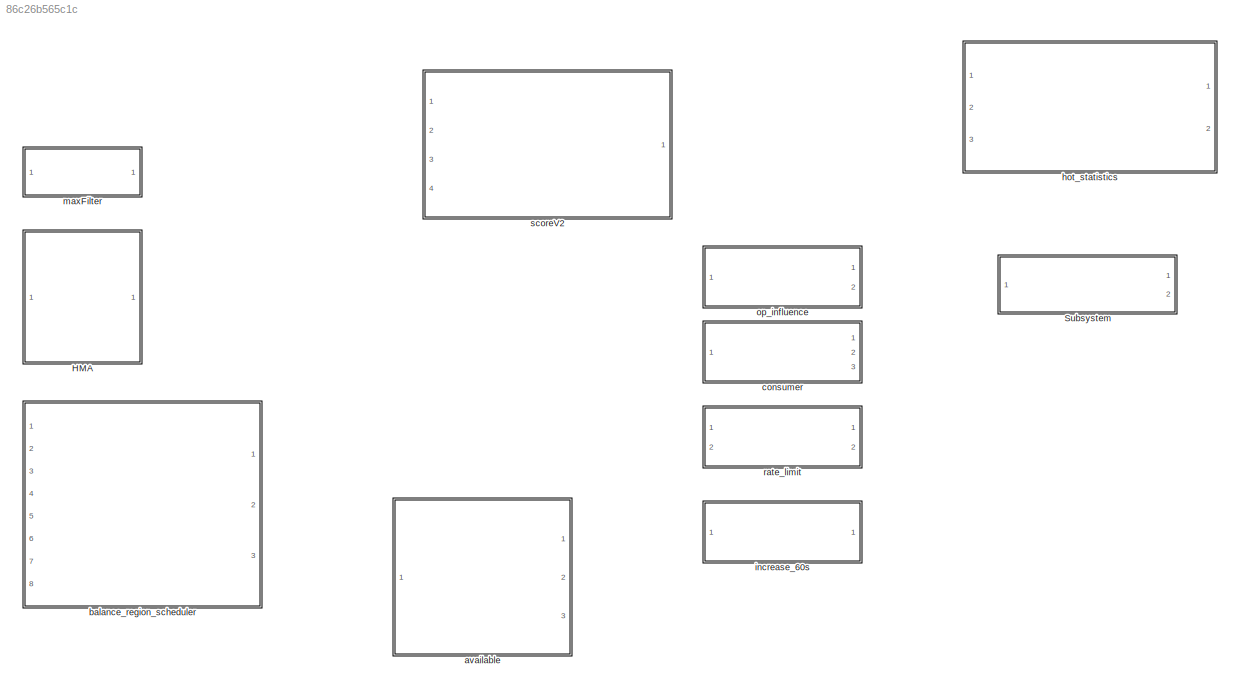
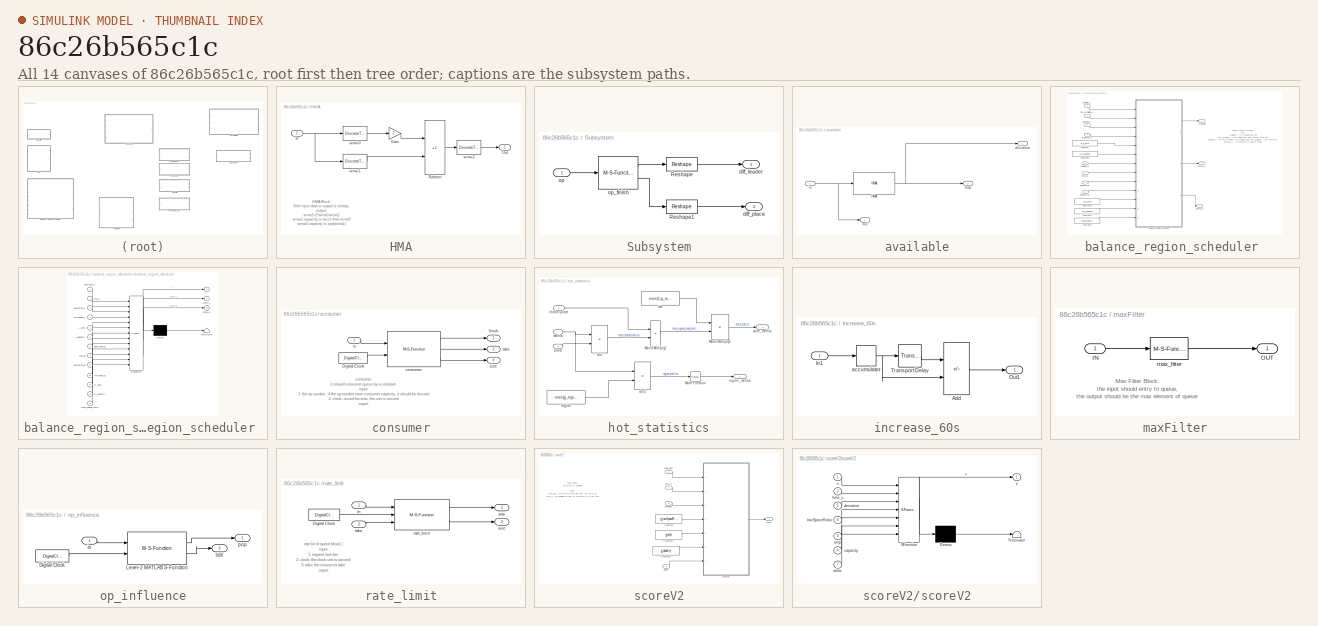
[diagram: thumbnail index - all 14 canvases of the model, root first then tree order]
MODEL slx_86c26b565c1c
KIND library
CONFIG AbsTol = auto
CONFIG EnableMultiTasking = off
CONFIG FixedStep = auto
CONFIG MaxStep = auto
CONFIG MinStep = auto
CONFIG RelTol = 1e-3
CONFIG SampleTimeConstraint = Unconstrained
CONFIG SolverName = VariableStepAuto
CONFIG StartTime = 0.0
CONFIG StopTime = 10.0
BLOCK [SubSystem] HMA
  Ports = [1, 1]
  RequestExecContextInheritance = off
BLOCK [Gain] HMA/Gain
  Gain = 2
BLOCK [Inport] HMA/In
BLOCK [Outport] HMA/Out
BLOCK [Sum] HMA/Subtract
  IconShape = rectangular
  Inputs = +-
  Ports = [2, 1]
BLOCK [DiscreteTransferFcn] HMA/wma-0
  Denominator = g_dens_0
  InitialStates = g_initial
  InputPortMap = u0
  Numerator = g_nums_0
  Ports = [1, 1]
  SampleTime = g_Ts
BLOCK [DiscreteTransferFcn] HMA/wma-1
  Denominator = g_dens_1
  InitialStates = g_initial
  InputPortMap = u0
  Numerator = g_nums_1
  Ports = [1, 1]
  SampleTime = g_Ts
BLOCK [DiscreteTransferFcn] HMA/wma-2
  Denominator = g_dens_2
  InitialStates = g_initial
  InputPortMap = u0
  Numerator = g_nums_2
  Ports = [1, 1]
  SampleTime = g_Ts
BLOCK [SubSystem] Subsystem
  Ports = [1, 2]
  RequestExecContextInheritance = off
BLOCK [Reshape] Subsystem/Reshape
  OutputDimensionality = Customize
  OutputDimensions = [g_region_count,g_store_count]
  Ports = [1, 1]
BLOCK [Reshape] Subsystem/Reshape1
  OutputDimensionality = Customize
  OutputDimensions = [g_region_count,g_store_count]
  Ports = [1, 1]
BLOCK [Outport] Subsystem/diff_leader
BLOCK [Outport] Subsystem/diff_place
  Port = 2
BLOCK [Inport] Subsystem/op
BLOCK [M-S-Function] Subsystem/op_finish
  FunctionName = op_finish
  Parameters = [g_region_count,g_store_count,g_Ts]
  Ports = [1, 2]
BLOCK [SubSystem] available
  Ports = [1, 3]
  RequestExecContextInheritance = off
BLOCK [Reference] available/HMA  REF=$bdroot/HMA
  Ports = [1, 1]
  SourceBlock = $bdroot/HMA
BLOCK [Outport] available/deviation
  Port = 3
BLOCK [Outport] available/hma
  Port = 2
BLOCK [Inport] available/in
BLOCK [Outport] available/out
BLOCK [SubSystem] balance_region_scheduler 
  Ports = [8, 3]
  RequestExecContextInheritance = off
BLOCK [Constant] balance_region_scheduler /Constant
  Value = g_a_amp
BLOCK [Constant] balance_region_scheduler /Constant1
  Value = g_a_capacity
BLOCK [Constant] balance_region_scheduler /Constant2
  Value = g_low_space_ratio
BLOCK [Constant] balance_region_scheduler /Constant3
  Value = g_b_amp
BLOCK [Constant] balance_region_scheduler /Constant4
  Value = g_b_capacity
BLOCK [Outport] balance_region_scheduler /Score_B
  Port = 3
BLOCK [Inport] balance_region_scheduler /available_A
BLOCK [Inport] balance_region_scheduler /available_B
  Port = 5
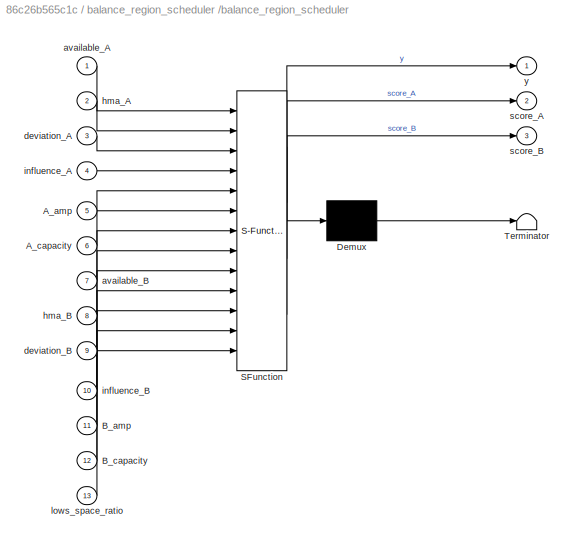
BLOCK [SubSystem] balance_region_scheduler /balance_region_scheduler 
  ErrorFcn = Stateflow.Translate.translate
  PermitHierarchicalResolution = ExplicitOnly
  Ports = [13, 3]
  RequestExecContextInheritance = off
  SFBlockType = MATLAB Function
  TreatAsAtomicUnit = on
BLOCK [Demux] balance_region_scheduler /balance_region_scheduler / Demux 
  Outputs = 1
  Ports = [1, 1]
BLOCK [S-Function] balance_region_scheduler /balance_region_scheduler / SFunction 
  EnableBusSupport = off
  FunctionName = sf_sfun
  PortCounts = [13 4]
  Ports = [13, 4]
  SFcnIsStateOwnerBlock = off
  SFunctionDeploymentMode = off
  Tag = Stateflow S-Function 3
BLOCK [Terminator] balance_region_scheduler /balance_region_scheduler / Terminator 
BLOCK [Inport] balance_region_scheduler /balance_region_scheduler /A_amp
  Port = 5
BLOCK [Inport] balance_region_scheduler /balance_region_scheduler /A_capacity
  Port = 6
BLOCK [Inport] balance_region_scheduler /balance_region_scheduler /B_amp
  Port = 11
BLOCK [Inport] balance_region_scheduler /balance_region_scheduler /B_capacity
  Port = 12
BLOCK [Inport] balance_region_scheduler /balance_region_scheduler /available_A
BLOCK [Inport] balance_region_scheduler /balance_region_scheduler /available_B
  Port = 7
BLOCK [Inport] balance_region_scheduler /balance_region_scheduler /deviation_A
  Port = 3
BLOCK [Inport] balance_region_scheduler /balance_region_scheduler /deviation_B
  Port = 9
BLOCK [Inport] balance_region_scheduler /balance_region_scheduler /hma_A
  Port = 2
BLOCK [Inport] balance_region_scheduler /balance_region_scheduler /hma_B
  Port = 8
BLOCK [Inport] balance_region_scheduler /balance_region_scheduler /influence_A
  Port = 4
BLOCK [Inport] balance_region_scheduler /balance_region_scheduler /influence_B
  Port = 10
BLOCK [Inport] balance_region_scheduler /balance_region_scheduler /lows_space_ratio
  Port = 13
BLOCK [Outport] balance_region_scheduler /balance_region_scheduler /score_A
  Port = 2
BLOCK [Outport] balance_region_scheduler /balance_region_scheduler /score_B
  Port = 3
BLOCK [Outport] balance_region_scheduler /balance_region_scheduler /y
BLOCK [Inport] balance_region_scheduler /deviation_A
  Port = 3
BLOCK [Inport] balance_region_scheduler /deviation_B
  Port = 7
BLOCK [Inport] balance_region_scheduler /hma_B
  Port = 6
BLOCK [Inport] balance_region_scheduler /hma_available_A
  Port = 2
BLOCK [Inport] balance_region_scheduler /influence_A
  Port = 4
BLOCK [Inport] balance_region_scheduler /influence_B
  Port = 8
BLOCK [Outport] balance_region_scheduler /schedule
BLOCK [Outport] balance_region_scheduler /score_A
  Port = 2
BLOCK [SubSystem] consumer
  Ports = [1, 3]
  RequestExecContextInheritance = off
BLOCK [DigitalClock] consumer/Digital Clock
  SampleTime = 0.1
BLOCK [M-S-Function] consumer/consumer
  FunctionName = consumer
  Parameters = [g_consumer_size,g_consumer_duration,g_Ts]
  Ports = [2, 3]
BLOCK [Outport] consumer/finish
BLOCK [Inport] consumer/in
BLOCK [Outport] consumer/size
  Port = 3
BLOCK [Outport] consumer/take
  Port = 2
BLOCK [SubSystem] hot_statistics
  Ports = [3, 2]
  RequestExecContextInheritance = off
BLOCK [Math] hot_statistics/Math Function
  Operator = transpose
  Ports = [1, 1]
BLOCK [Product] hot_statistics/Matrix Multiply1
  Multiplication = Matrix(*)
  Ports = [2, 1]
BLOCK [Product] hot_statistics/Matrix Multiply2
  Ports = [2, 1]
BLOCK [Product] hot_statistics/dot
  Multiplication = Matrix(*)
  Ports = [2, 1]
BLOCK [Product] hot_statistics/dot1
  Multiplication = Matrix(*)
  Ports = [2, 1]
BLOCK [Inport] hot_statistics/leader-place
  Port = 2
BLOCK [Inport] hot_statistics/metrics
BLOCK [Inport] hot_statistics/place
  Port = 3
BLOCK [Constant] hot_statistics/region
  Value = ones(g_region_dims,1)
  VectorParams1D = off
BLOCK [Outport] hot_statistics/region_metrics
  Port = 2
BLOCK [Outport] hot_statistics/store_metrics
BLOCK [Constant] hot_statistics/tikv
  Value = ones(1,g_region_dims)
  VectorParams1D = off
BLOCK [SubSystem] increase_60s
  Ports = [1, 1]
  RequestExecContextInheritance = off
BLOCK [Sum] increase_60s/Add
  IconShape = rectangular
  Inputs = -+
  Ports = [2, 1]
BLOCK [Inport] increase_60s/In1
BLOCK [Outport] increase_60s/Out1
BLOCK [TransportDelay] increase_60s/Transport Delay
  BufferSize = 4096
  DelayTime = 60
  FixedBuffer = on
  Ports = [1, 1]
BLOCK [DiscreteIntegrator] increase_60s/accumulator
  ICPrevOutput = DiscIntNeverNeededParam
  ICPrevScaledInput = DiscIntNeverNeededParam
  InitialConditionSetting = Auto
  Ports = [1, 1]
  SampleTime = -1
  gainval = 1/g_Ts
BLOCK [SubSystem] maxFilter
  Ports = [1, 1]
  RequestExecContextInheritance = off
BLOCK [Inport] maxFilter/IN
BLOCK [Outport] maxFilter/OUT
BLOCK [M-S-Function] maxFilter/max_filter
  FunctionName = max_filter
  Parameters = [g_n,g_Ts]
  Ports = [1, 1]
BLOCK [SubSystem] op_influence
  Ports = [1, 2]
  RequestExecContextInheritance = off
BLOCK [DigitalClock] op_influence/Digital Clock
BLOCK [M-S-Function] op_influence/Level-2 MATLAB S-Function
  FunctionName = op_influence
  Parameters = [g_store_limit, g_expired_time]
  Ports = [2, 2]
BLOCK [Inport] op_influence/in
BLOCK [Outport] op_influence/pop
BLOCK [Outport] op_influence/size
  Port = 2
BLOCK [SubSystem] rate_limit
  Ports = [2, 2]
  RequestExecContextInheritance = off
BLOCK [DigitalClock] rate_limit/Digital Clock
BLOCK [Inport] rate_limit/in
BLOCK [Outport] rate_limit/pop
BLOCK [M-S-Function] rate_limit/rate_limit
  FunctionName = rate_limit
  Parameters = [g_store_limit,g_Ts]
  Ports = [3, 2]
BLOCK [Outport] rate_limit/size
  Port = 2
BLOCK [Inport] rate_limit/take
  Port = 2
BLOCK [SubSystem] scoreV2
  Ports = [4, 1]
  RequestExecContextInheritance = off
BLOCK [Constant] scoreV2/Constant
  Value = g_lowSpaceRatio
BLOCK [Constant] scoreV2/Constant1
  Value = g_amp
BLOCK [Constant] scoreV2/Constant2
  Value = g_capacity
BLOCK [Inport] scoreV2/delta
  Port = 4
BLOCK [Inport] scoreV2/deviation
  Port = 3
BLOCK [Inport] scoreV2/hma_u
  Port = 2
BLOCK [Outport] scoreV2/score
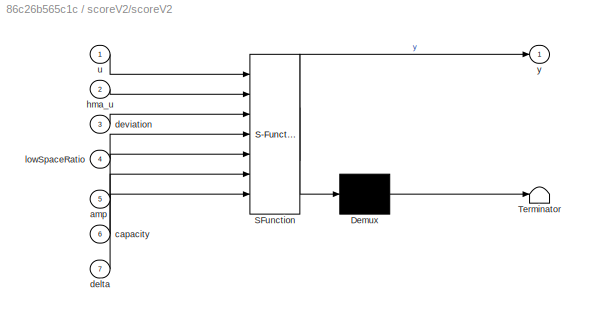
BLOCK [SubSystem] scoreV2/scoreV2
  ErrorFcn = Stateflow.Translate.translate
  PermitHierarchicalResolution = ExplicitOnly
  Ports = [7, 1]
  RequestExecContextInheritance = off
  SFBlockType = MATLAB Function
  TreatAsAtomicUnit = on
BLOCK [Demux] scoreV2/scoreV2/ Demux 
  Outputs = 1
  Ports = [1, 1]
BLOCK [S-Function] scoreV2/scoreV2/ SFunction 
  EnableBusSupport = off
  FunctionName = sf_sfun
  PortCounts = [7 2]
  Ports = [7, 2]
  SFcnIsStateOwnerBlock = off
  SFunctionDeploymentMode = off
  Tag = Stateflow S-Function 1
BLOCK [Terminator] scoreV2/scoreV2/ Terminator 
BLOCK [Inport] scoreV2/scoreV2/amp
  Port = 5
BLOCK [Inport] scoreV2/scoreV2/capacity
  Port = 6
BLOCK [Inport] scoreV2/scoreV2/delta
  Port = 7
BLOCK [Inport] scoreV2/scoreV2/deviation
  Port = 3
BLOCK [Inport] scoreV2/scoreV2/hma_u
  Port = 2
BLOCK [Inport] scoreV2/scoreV2/lowSpaceRatio
  Port = 4
BLOCK [Inport] scoreV2/scoreV2/u
BLOCK [Outport] scoreV2/scoreV2/y
BLOCK [Inport] scoreV2/used_size
ANNOTATION HMA: HMA Block: filter input data to output is steady, output: wma2=2*wma0-wma1 wma1 capacity is twice than wma0 wma2 capacity is sqrt(wma1)
ANNOTATION balance_region_scheduler : Balance Region Scheduler: Input: available_A: the available disk size ham_available_A: the available disk size through hma filter deviation_A: the diff betwwen the available and ham_available , then filtered by hma filter influence_A: the influence of balance region
ANNOTATION consumer: consumer: it should consumer queue by a constant input: 1: the op number , if the op number more consumer capacity, it should be discard 2: clock, record the time, the unit is second ouput: 1. finish: the op finish, it should be the op entry time than consumer_duration 2. take: the consumer can consumer op number, it should be the consumer_size - queue_size parameter: consumer_size: queue size con...<+38ch>
ANNOTATION maxFilter: Max Filter Block: the input should entry to queue, the output should be the max element of queue
ANNOTATION rate_limit: rate limit queue block： input: 1. request number 2. clock: the clock unit is second 3. take: the consumer take ouput: pop: when the size more than take, it should be take ,or else it should be size size: the queue size papameter: store limit : the size of queue,the rate should be store_limit/60 Ts: the rate limit check interval time ,unit is second
ANNOTATION scoreV2: Score Block: the score by available input: used_size: the current used disk size, the unit is gb hma_u: the available be filter by hma filter or other filter deviation: the diff between available and hma_available, delta: it should be the sum of tolerate size op influence ouput: y: score
LINE HMA/Gain:1 -> HMA/Subtract:1
NET HMA/In:1 -> HMA/wma-0:1, HMA/wma-1:1
LINE HMA/Subtract:1 -> HMA/wma-2:1
LINE HMA/wma-0:1 -> HMA/Gain:1
LINE HMA/wma-1:1 -> HMA/Subtract:2
LINE HMA/wma-2:1 -> HMA/Out:1
LINE Subsystem/Reshape1:1 -> Subsystem/diff_place:1
LINE Subsystem/Reshape:1 -> Subsystem/diff_leader:1
LINE Subsystem/op:1 -> Subsystem/op_finish:1
LINE Subsystem/op_finish:1 -> Subsystem/Reshape:1
LINE Subsystem/op_finish:2 -> Subsystem/Reshape1:1
NET available/HMA:1 -> available/deviation:1, available/hma:1
NET available/in:1 -> available/HMA:1, available/out:1
LINE balance_region_scheduler /Constant1:1 -> balance_region_scheduler /balance_region_scheduler :6
LINE balance_region_scheduler /Constant2:1 -> balance_region_scheduler /balance_region_scheduler :13
LINE balance_region_scheduler /Constant3:1 -> balance_region_scheduler /balance_region_scheduler :11
LINE balance_region_scheduler /Constant4:1 -> balance_region_scheduler /balance_region_scheduler :12
LINE balance_region_scheduler /Constant:1 -> balance_region_scheduler /balance_region_scheduler :5
LINE balance_region_scheduler /available_A:1 -> balance_region_scheduler /balance_region_scheduler :1
LINE balance_region_scheduler /available_B:1 -> balance_region_scheduler /balance_region_scheduler :7
LINE balance_region_scheduler /balance_region_scheduler :1 -> balance_region_scheduler /schedule:1
LINE balance_region_scheduler /balance_region_scheduler :2 -> balance_region_scheduler /score_A:1
LINE balance_region_scheduler /balance_region_scheduler :3 -> balance_region_scheduler /Score_B:1
LINE balance_region_scheduler /deviation_A:1 -> balance_region_scheduler /balance_region_scheduler :3
LINE balance_region_scheduler /deviation_B:1 -> balance_region_scheduler /balance_region_scheduler :9
LINE balance_region_scheduler /hma_B:1 -> balance_region_scheduler /balance_region_scheduler :8
LINE balance_region_scheduler /hma_available_A:1 -> balance_region_scheduler /balance_region_scheduler :2
LINE balance_region_scheduler /influence_A:1 -> balance_region_scheduler /balance_region_scheduler :4
LINE balance_region_scheduler /influence_B:1 -> balance_region_scheduler /balance_region_scheduler :10
LINE consumer/Digital Clock:1 -> consumer/consumer:2
LINE consumer/consumer:1 -> consumer/finish:1
LINE consumer/consumer:2 -> consumer/take:1
LINE consumer/consumer:3 -> consumer/size:1
LINE consumer/in:1 -> consumer/consumer:1
LINE hot_statistics/Math Function:1 -> hot_statistics/region_metrics:1
LINE hot_statistics/Matrix Multiply1:1 -> hot_statistics/store_metrics:1
LINE hot_statistics/Matrix Multiply2:1 -> hot_statistics/Matrix Multiply1:2
LINE hot_statistics/dot1:1 -> hot_statistics/Math Function:1
LINE hot_statistics/dot:1 -> hot_statistics/Matrix Multiply2:2
LINE hot_statistics/leader-place:1 -> hot_statistics/Matrix Multiply2:1
NET hot_statistics/metrics:1 -> hot_statistics/dot1:1, hot_statistics/dot:1
LINE hot_statistics/place:1 -> hot_statistics/dot:2
LINE hot_statistics/region:1 -> hot_statistics/dot1:2
LINE hot_statistics/tikv:1 -> hot_statistics/Matrix Multiply1:1
LINE increase_60s/Add:1 -> increase_60s/Out1:1
LINE increase_60s/In1:1 -> increase_60s/accumulator:1
LINE increase_60s/Transport Delay:1 -> increase_60s/Add:1
NET increase_60s/accumulator:1 -> increase_60s/Add:2, increase_60s/Transport Delay:1
LINE maxFilter/IN:1 -> maxFilter/max_filter:1
LINE maxFilter/max_filter:1 -> maxFilter/OUT:1
LINE op_influence/Digital Clock:1 -> op_influence/Level-2 MATLAB S-Function:2
LINE op_influence/Level-2 MATLAB S-Function:1 -> op_influence/pop:1
LINE op_influence/Level-2 MATLAB S-Function:2 -> op_influence/size:1
LINE op_influence/in:1 -> op_influence/Level-2 MATLAB S-Function:1
LINE rate_limit/Digital Clock:1 -> rate_limit/rate_limit:2
LINE rate_limit/in:1 -> rate_limit/rate_limit:1
LINE rate_limit/rate_limit:1 -> rate_limit/pop:1
LINE rate_limit/rate_limit:2 -> rate_limit/size:1
LINE rate_limit/take:1 -> rate_limit/rate_limit:3
LINE scoreV2/Constant1:1 -> scoreV2/scoreV2:5
LINE scoreV2/Constant2:1 -> scoreV2/scoreV2:6
LINE scoreV2/Constant:1 -> scoreV2/scoreV2:4
LINE scoreV2/delta:1 -> scoreV2/scoreV2:7
LINE scoreV2/deviation:1 -> scoreV2/scoreV2:3
LINE scoreV2/hma_u:1 -> scoreV2/scoreV2:2
LINE scoreV2/scoreV2:1 -> scoreV2/score:1
LINE scoreV2/used_size:1 -> scoreV2/scoreV2:1
note: NET lines group one-source signal fan-out (src -> all destinations, sorted); 1:1 wires keep LINE
CHART scoreV2/scoreV2 states=1 transitions=1
  STATE_LABEL 'eML_blk_kernel()'
  STATE_LABEL 'SCRIPT:\n% u: used size ,unit:Gb\n% capacity: disk space \nfunction y = fcn(u,hma_u,deviation,lowSpaceRatio,amp,capacity,delta)\n% u,hma_u,deviation,lows_space_ratio,amp,capacity,delta\ny=scoreV2(u,hma_u,deviation,lowSpaceRatio,amp,capacity,delta);\n\n'
CHART balance_region_scheduler /balance_region_scheduler  states=1 transitions=1
  STATE_LABEL 'eML_blk_kernel()'
  STATE_LABEL 'SCRIPT:\nfunction [y,score_A, score_B] = fcn(available_A,hma_A,deviation_A,influence_A, A_amp,A_capacity,available_B,hma_B,deviation_B,influence_B, B_amp,B_capacity,lows_space_ratio)\n\n% regionSize=96MB\n% regionSize=96;\n% minTolerantSizeRatio=1.0;\n% adjustRatio=0.005;\n\n% usedSize_A=A_capacity-available_A;\n% usedSize_B=B_capacity-available_B;\n\n% size=max(usedSize_A,usedSize_B);\n% tolerateCount=max(mi...<+1383ch>'
CHART  states=0 transitions=0
CHART  states=0 transitions=0
